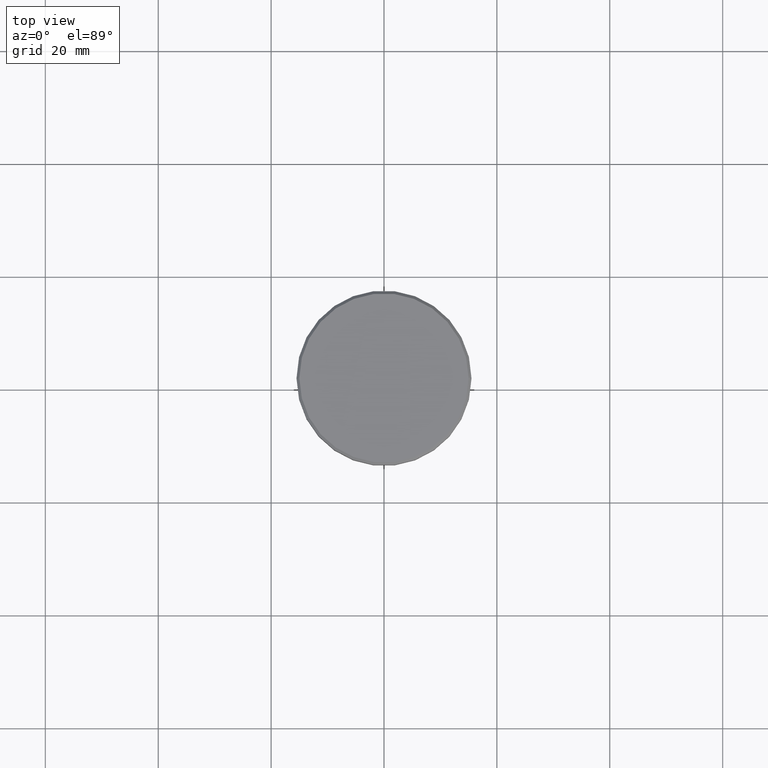
[diagram: clean part render]
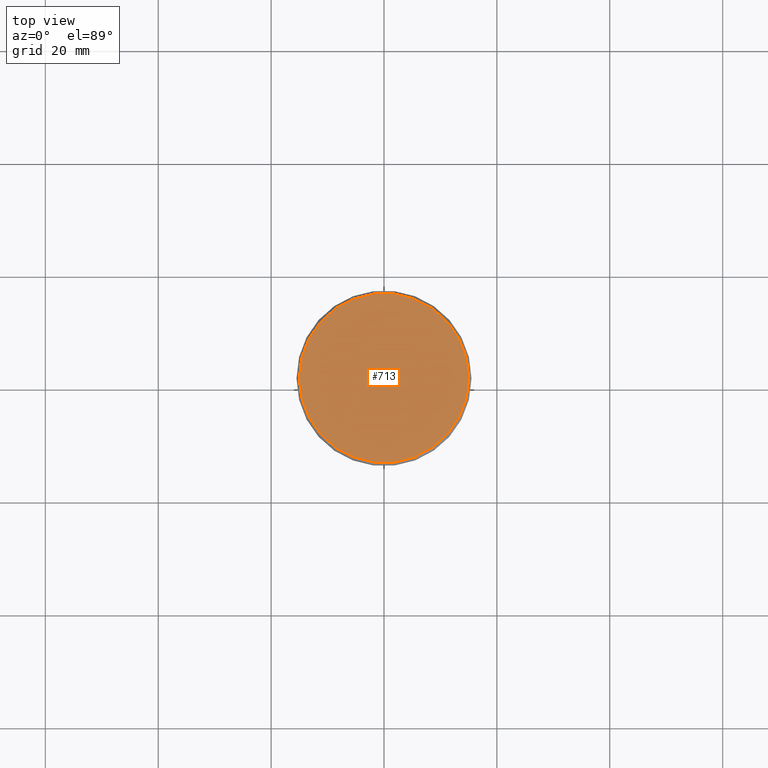
[diagram: same view with one face highlighted and labeled with its STEP entity id]
A machine part, top view. The second image highlights one B-rep face of the part: STEP entity #713.
In plain terms, the highlighted planar face has unit normal (0, -0, 1).
Its self-contained STEP definition (entity closure, byte-faithful):
#10 = ORIENTED_EDGE ( 'NONE', *, *, #740, .T. ) ;
#87 = DIRECTION ( 'NONE',  ( 1.000000000000000000, 0.000000000000000000, 0.000000000000000000 ) ) ;
#125 = AXIS2_PLACEMENT_3D ( 'NONE', #539, #907, #545 ) ;
#147 = AXIS2_PLACEMENT_3D ( 'NONE', #305, #1036, #397 ) ;
#174 = CARTESIAN_POINT ( 'NONE',  ( 0.000000000000000000, 0.000000000000000000, 0.000000000000000000 ) ) ;
#202 = EDGE_CURVE ( 'NONE', #637, #1107, #722, .T. ) ;
#220 = ORIENTED_EDGE ( 'NONE', *, *, #202, .T. ) ;
#248 = AXIS2_PLACEMENT_3D ( 'NONE', #174, #543, #87 ) ;
#272 = FACE_OUTER_BOUND ( 'NONE', #357, .T. ) ;
#305 = CARTESIAN_POINT ( 'NONE',  ( 0.000000000000000000, 0.000000000000000000, 0.000000000000000000 ) ) ;
#357 = EDGE_LOOP ( 'NONE', ( #220, #10 ) ) ;
#397 = DIRECTION ( 'NONE',  ( 1.000000000000000000, 0.000000000000000000, 0.000000000000000000 ) ) ;
#465 = CARTESIAN_POINT ( 'NONE',  ( -14.99999999999998579, 0.000000000000000000, 0.000000000000000000 ) ) ;
#539 = CARTESIAN_POINT ( 'NONE',  ( 0.000000000000000000, 0.000000000000000000, 0.000000000000000000 ) ) ;
#543 = DIRECTION ( 'NONE',  ( 0.000000000000000000, -0.000000000000000000, 1.000000000000000000 ) ) ;
#545 = DIRECTION ( 'NONE',  ( 1.000000000000000000, 0.000000000000000000, 0.000000000000000000 ) ) ;
#637 = VERTEX_POINT ( 'NONE', #465 ) ;
#713 = ADVANCED_FACE ( 'NONE', ( #272 ), #997, .T. ) ;
#722 = CIRCLE ( 'NONE', #125, 14.99999999999998579 ) ;
#740 = EDGE_CURVE ( 'NONE', #1107, #637, #989, .T. ) ;
#907 = DIRECTION ( 'NONE',  ( -0.000000000000000000, -0.000000000000000000, 1.000000000000000000 ) ) ;
#982 = CARTESIAN_POINT ( 'NONE',  ( 14.99999999999998579, 1.867586368699712587E-15, 0.000000000000000000 ) ) ;
#989 = CIRCLE ( 'NONE', #147, 14.99999999999998579 ) ;
#997 = PLANE ( 'NONE',  #248 ) ;
#1036 = DIRECTION ( 'NONE',  ( -0.000000000000000000, -0.000000000000000000, 1.000000000000000000 ) ) ;
#1107 = VERTEX_POINT ( 'NONE', #982 ) ;